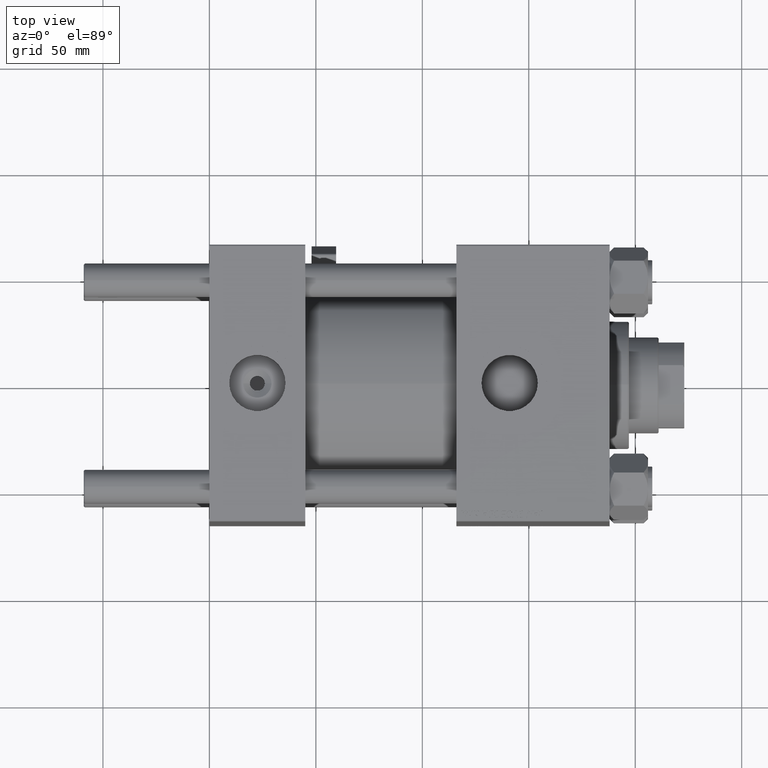
[diagram: clean part render]
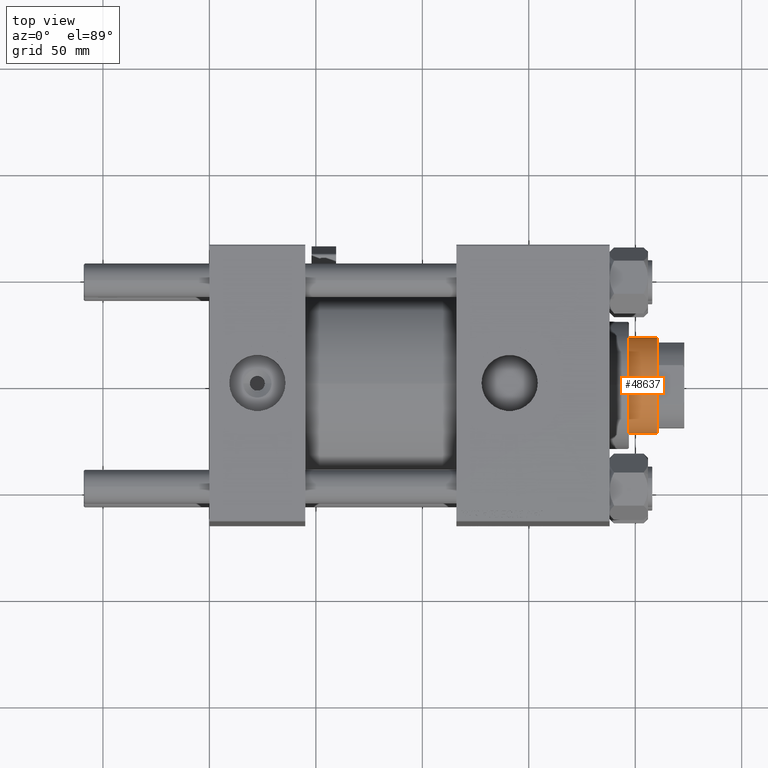
[diagram: same view with one face highlighted and labeled with its STEP entity id]
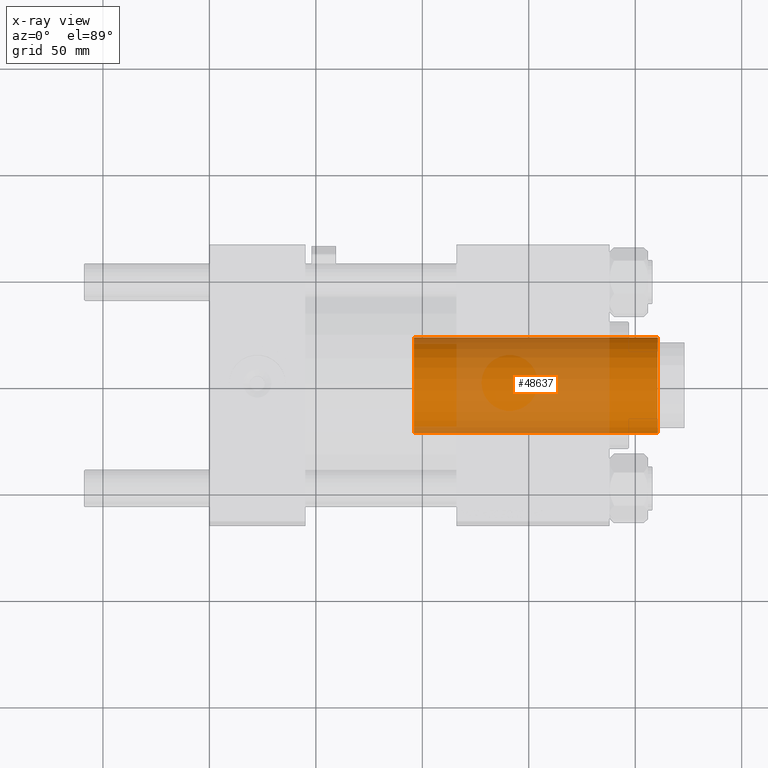
[diagram: x-ray of the same camera — body ghosted, the highlighted face saturated]
A machine part, top view. The second image highlights one B-rep face of the part: STEP entity #48637.
The next image is the same camera in x-ray: the body ghosted, the highlighted face saturated — about 55% of this face is hidden behind the body in this view.
In plain terms, the highlighted cylindrical surface (partial cylindrical patch) has radius 22.5 mm, axis along (-1, 0, 0).
Its self-contained STEP definition (entity closure, byte-faithful):
#400 = CIRCLE ( 'NONE', #7186, 22.50000000000000355 ) ;
#680 = DIRECTION ( 'NONE',  ( 0.000000000000000000, 0.000000000000000000, 1.000000000000000000 ) ) ;
#2058 = CIRCLE ( 'NONE', #6309, 22.50000000000000355 ) ;
#6309 = AXIS2_PLACEMENT_3D ( 'NONE', #38016, #39057, #22365 ) ;
#7186 = AXIS2_PLACEMENT_3D ( 'NONE', #40785, #680, #33084 ) ;
#8770 = ORIENTED_EDGE ( 'NONE', *, *, #29151, .T. ) ;
#9462 = CARTESIAN_POINT ( 'NONE',  ( -22.50000000000000355, 0.000000000000000000, 166.0000000000000000 ) ) ;
#11637 = ORIENTED_EDGE ( 'NONE', *, *, #39457, .T. ) ;
#14499 = DIRECTION ( 'NONE',  ( -0.000000000000000000, -0.000000000000000000, -1.000000000000000000 ) ) ;
#15640 = VECTOR ( 'NONE', #22039, 1000.000000000000000 ) ;
#16707 = CARTESIAN_POINT ( 'NONE',  ( -22.50000000000000355, 0.000000000000000000, 165.4999999999999716 ) ) ;
#18566 = CARTESIAN_POINT ( 'NONE',  ( -22.50000000000000355, 0.000000000000000000, 51.00000000000000000 ) ) ;
#18811 = EDGE_CURVE ( 'NONE', #46641, #23276, #49565, .T. ) ;
#18838 = CARTESIAN_POINT ( 'NONE',  ( 22.50000000000000355, 2.755455298081545172E-15, 166.0000000000000000 ) ) ;
#19826 = CARTESIAN_POINT ( 'NONE',  ( 22.50000000000000355, 2.755455298081545172E-15, 51.00000000000000000 ) ) ;
#22039 = DIRECTION ( 'NONE',  ( -0.000000000000000000, -0.000000000000000000, -1.000000000000000000 ) ) ;
#22365 = DIRECTION ( 'NONE',  ( 1.000000000000000000, 0.000000000000000000, 0.000000000000000000 ) ) ;
#23276 = VERTEX_POINT ( 'NONE', #18566 ) ;
#27932 = ORIENTED_EDGE ( 'NONE', *, *, #18811, .T. ) ;
#29151 = EDGE_CURVE ( 'NONE', #23276, #36300, #400, .T. ) ;
#30681 = DIRECTION ( 'NONE',  ( -1.000000000000000000, 0.000000000000000000, 0.000000000000000000 ) ) ;
#32197 = EDGE_LOOP ( 'NONE', ( #46450, #11637, #27932, #8770 ) ) ;
#33084 = DIRECTION ( 'NONE',  ( 1.000000000000000000, 0.000000000000000000, 0.000000000000000000 ) ) ;
#33096 = DIRECTION ( 'NONE',  ( -0.000000000000000000, -0.000000000000000000, -1.000000000000000000 ) ) ;
#33588 = CARTESIAN_POINT ( 'NONE',  ( 22.50000000000000355, 2.755455298081545172E-15, 165.4999999999999716 ) ) ;
#36300 = VERTEX_POINT ( 'NONE', #19826 ) ;
#36642 = VERTEX_POINT ( 'NONE', #33588 ) ;
#38016 = CARTESIAN_POINT ( 'NONE',  ( 0.000000000000000000, 0.000000000000000000, 165.4999999999999716 ) ) ;
#39057 = DIRECTION ( 'NONE',  ( 0.000000000000000000, 0.000000000000000000, -1.000000000000000000 ) ) ;
#39457 = EDGE_CURVE ( 'NONE', #36642, #46641, #2058, .T. ) ;
#39697 = EDGE_CURVE ( 'NONE', #36642, #36300, #42465, .T. ) ;
#40785 = CARTESIAN_POINT ( 'NONE',  ( 0.000000000000000000, 0.000000000000000000, 51.00000000000000000 ) ) ;
#42465 = LINE ( 'NONE', #18838, #15640 ) ;
#44988 = VECTOR ( 'NONE', #33096, 1000.000000000000000 ) ;
#46357 = AXIS2_PLACEMENT_3D ( 'NONE', #50609, #14499, #30681 ) ;
#46450 = ORIENTED_EDGE ( 'NONE', *, *, #39697, .F. ) ;
#46641 = VERTEX_POINT ( 'NONE', #16707 ) ;
#47129 = FACE_OUTER_BOUND ( 'NONE', #32197, .T. ) ;
#47652 = CYLINDRICAL_SURFACE ( 'NONE', #46357, 22.50000000000000355 ) ;
#48637 = ADVANCED_FACE ( 'NONE', ( #47129 ), #47652, .T. ) ;
#49565 = LINE ( 'NONE', #9462, #44988 ) ;
#50609 = CARTESIAN_POINT ( 'NONE',  ( 0.000000000000000000, 0.000000000000000000, 166.0000000000000000 ) ) ;